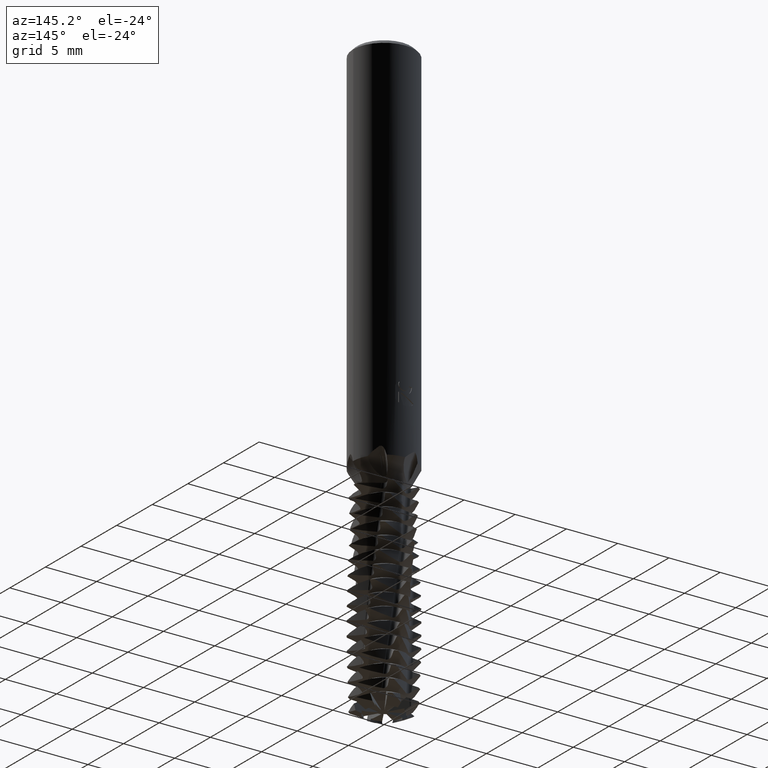
[diagram: clean part render]
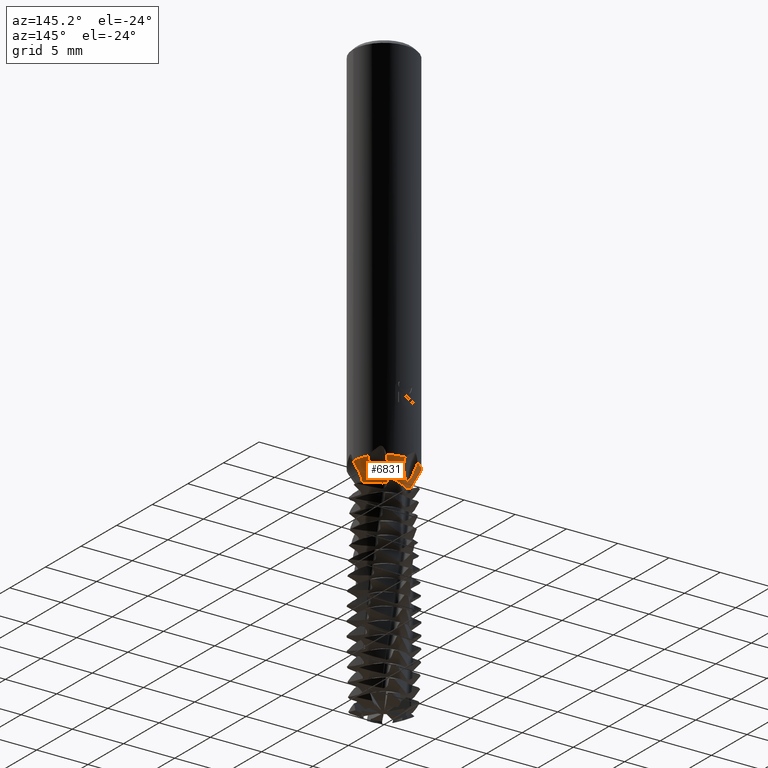
[diagram: same view with one face highlighted and labeled with its STEP entity id]
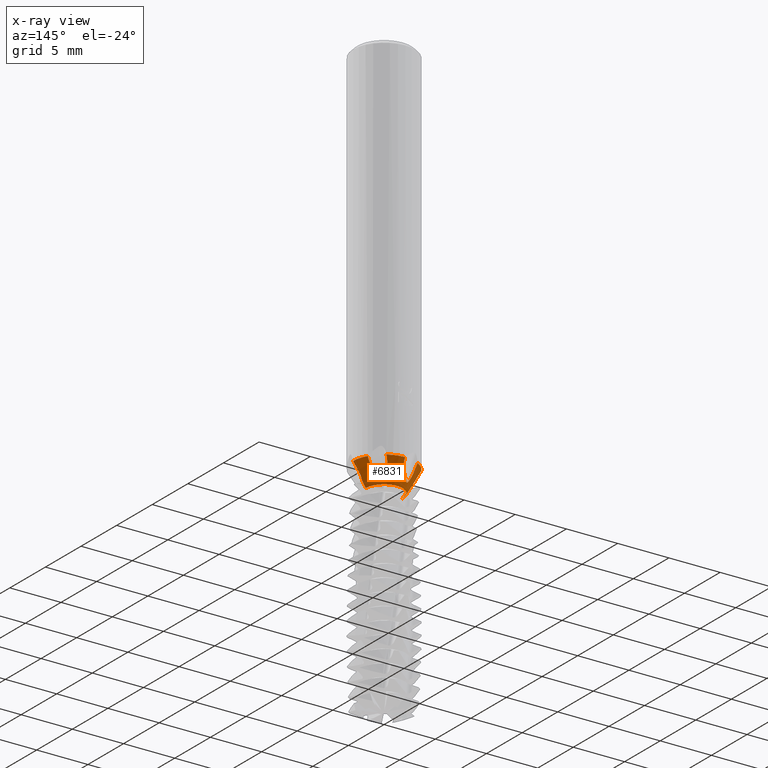
[diagram: x-ray of the same camera — body ghosted, the highlighted face saturated]
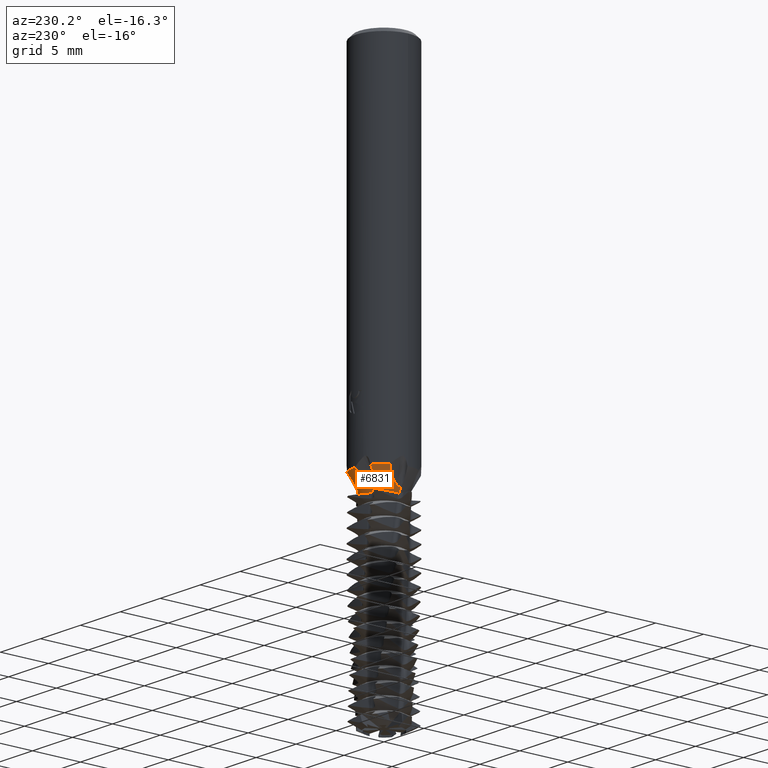
[diagram: same view with one face highlighted and labeled with its STEP entity id]
A machine part, auxiliary view. The second image highlights one B-rep face of the part: STEP entity #6831.
The next image is the same camera in x-ray: the body ghosted, the highlighted face saturated — about 0% of this face is hidden behind the body in this view.
A second angle (auxiliary view) of the same face is appended — the face is thin or edge-on in the first view.
In plain terms, the highlighted conical surface has half-angle 30 deg.
Its self-contained STEP definition (entity closure, byte-faithful):
#3035=EDGE_CURVE('',#3593,#5919,#8692,.T.);
#3051=VERTEX_POINT('',#8708);
#3191=VERTEX_POINT('',#8857);
#3333=VERTEX_POINT('',#9008);
#3381=VERTEX_POINT('',#9059);
#3471=EDGE_CURVE('',#6787,#4693,#9158,.T.);
#3577=VERTEX_POINT('',#9278);
#3593=VERTEX_POINT('',#9298);
#3607=EDGE_CURVE('',#4331,#3381,#9313,.T.);
#3623=EDGE_CURVE('',#6535,#5625,#9329,.T.);
#4085=EDGE_CURVE('',#3051,#4153,#9828,.T.);
#4153=VERTEX_POINT('',#9899);
#4331=VERTEX_POINT('',#10092);
#4681=VERTEX_POINT('',#10474);
#4693=VERTEX_POINT('',#10486);
#4701=EDGE_CURVE('',#5919,#6691,#10494,.T.);
#4789=EDGE_CURVE('',#5871,#3051,#10593,.T.);
#4961=EDGE_CURVE('',#3333,#3191,#10779,.T.);
#5119=EDGE_CURVE('',#4153,#6535,#10949,.T.);
#5223=EDGE_CURVE('',#3381,#5871,#11065,.T.);
#5455=VERTEX_POINT('',#11317);
#5589=EDGE_CURVE('',#6691,#6587,#11464,.T.);
#5625=VERTEX_POINT('',#11503);
#5871=VERTEX_POINT('',#11771);
#5919=VERTEX_POINT('',#11822);
#6287=VERTEX_POINT('',#12226);
#6535=VERTEX_POINT('',#12492);
#6565=EDGE_CURVE('',#3191,#3593,#12524,.T.);
#6587=VERTEX_POINT('',#12546);
#6691=VERTEX_POINT('',#12661);
#6787=VERTEX_POINT('',#12766);
#6831=ADVANCED_FACE('',(#12813),#12814,.T.);
#6877=EDGE_CURVE('',#7833,#4331,#12865,.T.);
#6929=EDGE_CURVE('',#3577,#4681,#12920,.T.);
#6969=EDGE_CURVE('',#3577,#3333,#12963,.T.);
#6989=EDGE_CURVE('',#5455,#6287,#12986,.T.);
#7633=EDGE_CURVE('',#4693,#6287,#13694,.T.);
#7673=EDGE_CURVE('',#4681,#5455,#13736,.T.);
#7683=EDGE_CURVE('',#6787,#5625,#13747,.T.);
#7833=VERTEX_POINT('',#13908);
#8137=EDGE_CURVE('',#6587,#7833,#14241,.T.);
#8692=CIRCLE('',#15108,3.0);
#8708=CARTESIAN_POINT('',(1.1049061965859,1.81742543855675,-38.0326686084301));
#8857=CARTESIAN_POINT('',(-2.10829573166421,0.314880770105269,-38.0244497289772));
#9008=CARTESIAN_POINT('',(-2.12638969756715,0.048164115763872,-38.0326686084301));
#9059=CARTESIAN_POINT('',(1.54380865566936,2.5722859161999,-36.5204758472839));
#9158=B_SPLINE_CURVE_WITH_KNOTS('',3,(#17267,#17268,#17269,#17270,#17271,#17272,#17273,#17274,#17275,#17276,#17277,#17278,#17279,#17280,#17281,#17282,#17283,#17284,#17285,#17286,#17287,#17288,#17289,#17290,#17291,#17292,#17293,#17294,#17295,#17296,#17297,#17298,#17299,#17300,#17301,#17302,#17303,#17304,#17305,#17306,#17307,#17308,#17309,#17310,#17311,#17312,#17313,#17314,#17315,#17316,#17317,#17318),.UNSPECIFIED.,.F.,.F.,(4,2,2,2,2,2,2,2,2,2,2,2,2,2,2,2,2,2,2,2,2,2,2,2,2,4),(0.0,1.79892156464952,3.59784312929904,5.39676469394856,7.19568625859808,8.09689398824936,8.99810171790064,9.89930944755192,10.8005171772032,11.6961765187938,12.5918358603844,13.2328963691149,13.4855879126679,13.6471176097623,13.8086473068568,13.8697587230916,13.9308701393263,14.0530929717959,14.2345228541612,14.5010364919052,14.7675501296493,15.3132858626618,15.8590215956744,16.9504930616995,18.0499211646433,19.1493492675871),.UNSPECIFIED.);
#9278=CARTESIAN_POINT('',(-2.16499437803357,3.69336668192884E-012,-37.9667480085785));
#9298=CARTESIAN_POINT('',(-2.58403707332399,1.52405787412657,-36.5204758472839));
#9313=CIRCLE('',#18402,3.0);
#9329=CIRCLE('',#18445,3.0);
#9828=B_SPLINE_CURVE_WITH_KNOTS('',3,(#21088,#21089,#21090,#21091,#21092,#21093,#21094,#21095,#21096,#21097,#21098,#21099,#21100,#21101,#21102,#21103,#21104,#21105,#21106,#21107,#21108,#21109,#21110,#21111),.UNSPECIFIED.,.F.,.F.,(4,2,2,2,2,2,2,2,2,2,2,4),(0.0,1.3654186101608,1.98511541988212,2.32692038766749,2.53101926806104,2.68486974053682,2.83100154557824,3.01260149889104,3.30866330231795,3.91424837905846,6.27634429260492,7.38712208023366),.UNSPECIFIED.);
#9899=CARTESIAN_POINT('',(1.32684261190647,1.66839727725888,-38.0244497289772));
#10092=CARTESIAN_POINT('',(0.0278542991693245,2.99987068688265,-36.5204758472839));
#10474=CARTESIAN_POINT('',(-1.79938617,0.0,-38.6));
#10486=CARTESIAN_POINT('',(2.58062501028295,0.0771844237953902,-37.2448558426521));
#10494=B_SPLINE_CURVE_WITH_KNOTS('',3,(#24257,#24258,#24259,#24260,#24261,#24262,#24263,#24264,#24265,#24266,#24267,#24268,#24269,#24270,#24271,#24272,#24273,#24274,#24275,#24276),.UNSPECIFIED.,.F.,.F.,(4,2,2,2,2,2,2,2,2,4),(0.0,1.80060986239746,2.7009147935962,3.60121972479493,4.50152465599366,5.40182958719239,7.20243944958986,8.34679906101014,8.91897886672028,9.49115867243042),.UNSPECIFIED.);
#10593=B_SPLINE_CURVE_WITH_KNOTS('',3,(#24833,#24834,#24835,#24836,#24837,#24838,#24839,#24840,#24841,#24842,#24843,#24844,#24845,#24846,#24847,#24848,#24849,#24850,#24851,#24852,#24853,#24854,#24855,#24856),.UNSPECIFIED.,.F.,.F.,(4,2,2,2,2,2,2,2,2,2,2,4),(0.0,1.3654186101608,1.98511541988212,2.32692038766749,2.53101926806104,2.68486974053682,2.83100154557824,3.01260149889104,3.30866330231795,3.91424837905846,6.27634429260492,7.38712208023366),.UNSPECIFIED.);
#10779=B_SPLINE_CURVE_WITH_KNOTS('',3,(#25932,#25933,#25934,#25935,#25936,#25937,#25938,#25939,#25940,#25941,#25942,#25943,#25944,#25945,#25946,#25947,#25948,#25949,#25950,#25951,#25952,#25953,#25954,#25955),.UNSPECIFIED.,.F.,.F.,(4,2,2,2,2,2,2,2,2,2,2,4),(0.0,1.3575415971684,1.97770147878749,2.33902558492398,2.55100621588176,2.70607941559937,2.85274831210491,3.03309770705154,3.32341211978844,3.90851040970902,5.28297228147467,7.46680945912721),.UNSPECIFIED.);
#10949=B_SPLINE_CURVE_WITH_KNOTS('',3,(#26716,#26717,#26718,#26719,#26720,#26721,#26722,#26723,#26724,#26725),.UNSPECIFIED.,.F.,.F.,(4,2,2,2,4),(0.0,0.518997077521445,1.15223215002492,1.98162829319229,2.55472416074088),.UNSPECIFIED.);
#11065=B_SPLINE_CURVE_WITH_KNOTS('',3,(#27326,#27327,#27328,#27329,#27330,#27331,#27332,#27333,#27334,#27335,#27336,#27337,#27338,#27339,#27340,#27341,#27342,#27343,#27344,#27345,#27346,#27347,#27348,#27349,#27350,#27351,#27352,#27353,#27354,#27355,#27356,#27357,#27358,#27359,#27360,#27361,#27362,#27363,#27364,#27365,#27366,#27367,#27368,#27369,#27370,#27371),.UNSPECIFIED.,.F.,.F.,(4,2,2,2,2,2,2,2,2,2,2,2,2,2,2,2,2,2,2,2,2,2,4),(0.0,1.19030835882144,2.38061671764289,3.57092507646433,4.76123343528578,5.95154179410722,7.14185015292867,8.33215851175011,9.52246687057156,10.4222211647252,11.3219754588789,11.9578497843963,12.208865108645,12.369708292074,12.530551475503,12.5914172977493,12.6522831199956,12.7740147644882,12.9541109301356,13.4819090235199,14.020830879234,14.5597527349481,15.6375964463763),.UNSPECIFIED.);
#11317=CARTESIAN_POINT('',(1.79938617,2.20353973676211E-016,-38.6));
#11464=B_SPLINE_CURVE_WITH_KNOTS('',3,(#29492,#29493,#29494,#29495,#29496,#29497,#29498,#29499,#29500,#29501,#29502,#29503,#29504,#29505,#29506,#29507,#29508,#29509,#29510,#29511),.UNSPECIFIED.,.F.,.F.,(4,2,2,2,2,2,2,2,2,4),(0.0,1.30419701519526,2.0239074430694,2.45782086379809,2.70470641663795,2.88051997531018,3.04378008304266,3.238514011857,3.54483593188181,4.12630736244945),.UNSPECIFIED.);
#11503=CARTESIAN_POINT('',(3.0,3.67381906146713E-016,-36.5204758472839));
#11771=CARTESIAN_POINT('',(1.22346883335821,2.27347902844421,-37.2448558426521));
#11822=CARTESIAN_POINT('',(-1.45576062139136,2.62312047249192,-36.5204758472839));
#12226=CARTESIAN_POINT('',(2.16499437803356,-3.69594273362605E-012,-37.9667480085785));
#12492=CARTESIAN_POINT('',(2.61189137249331,1.47581281275608,-36.5204758472839));
#12524=B_SPLINE_CURVE_WITH_KNOTS('',3,(#35122,#35123,#35124,#35125,#35126,#35127,#35128,#35129),.UNSPECIFIED.,.F.,.F.,(4,2,2,4),(0.0,0.631354581823227,1.4093412601336,2.09220906285944),.UNSPECIFIED.);
#12546=CARTESIAN_POINT('',(-1.02148350098127,1.8655895543206,-38.0326686084301));
#12661=CARTESIAN_POINT('',(-1.35715617692474,2.19629460464882,-37.2448558426521));
#12766=CARTESIAN_POINT('',(2.86296524862623,4.94458380308362E-016,-36.757826998509));
#12813=FACE_OUTER_BOUND('',#36851,.T.);
#12814=CONICAL_SURFACE('',#36852,2.399693085,0.523598775598299);
#12865=B_SPLINE_CURVE_WITH_KNOTS('',3,(#37153,#37154,#37155,#37156,#37157,#37158,#37159,#37160,#37161,#37162),.UNSPECIFIED.,.F.,.F.,(4,2,2,2,4),(0.0,0.546723211207724,1.281285638357,1.80064566287246,2.30334358990928),.UNSPECIFIED.);
#12920=LINE('',#37415,#37416);
#12963=B_SPLINE_CURVE_WITH_KNOTS('',3,(#37616,#37617,#37618,#37619,#37620,#37621,#37622,#37623,#37624,#37625,#37626,#37627,#37628,#37629,#37630,#37631,#37632,#37633,#37634,#37635,#37636,#37637,#37638,#37639),.UNSPECIFIED.,.F.,.F.,(4,2,2,2,2,2,2,2,2,2,2,4),(0.0,1.3575415971684,1.97770147878749,2.33902558492398,2.55100621588176,2.70607941559937,2.85274831210491,3.03309770705154,3.32341211978844,3.90851040970902,5.28297228147467,7.46680945912721),.UNSPECIFIED.);
#12986=LINE('',#37740,#37741);
#13694=B_SPLINE_CURVE_WITH_KNOTS('',3,(#41734,#41735,#41736,#41737,#41738,#41739,#41740,#41741,#41742,#41743,#41744,#41745,#41746,#41747,#41748,#41749,#41750,#41751,#41752,#41753,#41754,#41755,#41756,#41757),.UNSPECIFIED.,.F.,.F.,(4,2,2,2,2,2,2,2,2,2,2,4),(0.0,1.35754159716832,1.97770147878734,2.33902558492657,2.5510062158879,2.70607941560779,2.85274831211545,3.03309770706513,3.32341211980714,3.90851040973735,5.28297228152428,7.46680945920899),.UNSPECIFIED.);
#13736=CIRCLE('',#41980,1.79938617);
#13747=LINE('',#42057,#42058);
#13908=CARTESIAN_POINT('',(-0.781453119757736,1.98327804736414,-38.0244497289772));
#14241=B_SPLINE_CURVE_WITH_KNOTS('',3,(#44194,#44195,#44196,#44197,#44198,#44199,#44200,#44201,#44202,#44203,#44204,#44205,#44206,#44207,#44208,#44209,#44210,#44211,#44212,#44213),.UNSPECIFIED.,.F.,.F.,(4,2,2,2,2,2,2,2,2,4),(0.0,1.30419701519526,2.0239074430694,2.45782086379809,2.70470641663795,2.88051997531018,3.04378008304266,3.238514011857,3.54483593188181,4.12630736244945),.UNSPECIFIED.);
#15108=AXIS2_PLACEMENT_3D('',#46751,#46752,#46753);
#17267=CARTESIAN_POINT('',(5.60865937198833,-4.49160101712833,-29.2709615960817));
#17268=CARTESIAN_POINT('',(5.53417943615459,-4.14075545272087,-29.7515122013028));
#17269=CARTESIAN_POINT('',(5.44437967084136,-3.77194824815466,-30.2532068101509));
#17270=CARTESIAN_POINT('',(5.22340165139991,-3.02417260660068,-31.2719130887645));
#17271=CARTESIAN_POINT('',(5.09211627073529,-2.64496117692197,-31.7887231259066));
#17272=CARTESIAN_POINT('',(4.77622905463111,-1.91200858271407,-32.8176739152328));
#17273=CARTESIAN_POINT('',(4.59104662786163,-1.55813602903106,-33.3299095047367));
#17274=CARTESIAN_POINT('',(4.16227896952514,-0.92788389188668,-34.3425408306651));
#17275=CARTESIAN_POINT('',(3.91808717783326,-0.65307615687015,-34.8436572123733));
#17276=CARTESIAN_POINT('',(3.52382998832684,-0.335020471456029,-35.5876191925418));
#17277=CARTESIAN_POINT('',(3.37970458659504,-0.23807948229092,-35.8496736439336));
#17278=CARTESIAN_POINT('',(3.07518078675562,-0.0765550563978144,-36.3901196137103));
#17279=CARTESIAN_POINT('',(2.91487270829784,-0.0120303712761077,-36.6685795759934));
#17280=CARTESIAN_POINT('',(2.58991798567534,0.0810987368559631,-37.2293493297819));
#17281=CARTESIAN_POINT('',(2.42524000643958,0.109877140415632,-37.5118632278129));
#17282=CARTESIAN_POINT('',(2.10267367810805,0.137587492294589,-38.0671127432704));
#17283=CARTESIAN_POINT('',(1.94479077136784,0.136675214724881,-38.339843737345));
#17284=CARTESIAN_POINT('',(1.6460497495073,0.115680414712948,-38.8585545809848));
#17285=CARTESIAN_POINT('',(1.48327928801769,0.093554661279961,-39.1427549125285));
#17286=CARTESIAN_POINT('',(1.15864787109506,0.0295768329008396,-39.7095823477714));
#17287=CARTESIAN_POINT('',(0.996872798866824,-0.0120142582102919,-39.9922880594309));
#17288=CARTESIAN_POINT('',(0.739436587657935,-0.0859679937361218,-40.4289197218717));
#17289=CARTESIAN_POINT('',(0.609138697059832,-0.1266168170284,-40.6459992119375));
#17290=CARTESIAN_POINT('',(0.444754777656119,-0.176164651136261,-40.8894693067361));
#17291=CARTESIAN_POINT('',(0.386961242049176,-0.193227014641139,-40.9706189560452));
#17292=CARTESIAN_POINT('',(0.300990999917644,-0.216262462494056,-41.0761786320026));
#17293=CARTESIAN_POINT('',(0.262532427396549,-0.22604293901482,-41.1199920060905));
#17294=CARTESIAN_POINT('',(0.178257790441463,-0.24401499645515,-41.1971321765933));
#17295=CARTESIAN_POINT('',(0.132615809415084,-0.252222716498533,-41.23064518536));
#17296=CARTESIAN_POINT('',(0.0629589130829031,-0.2595570026175,-41.2551767765774));
#17297=CARTESIAN_POINT('',(0.0425736441916077,-0.261183415970423,-41.2596883161231));
#17298=CARTESIAN_POINT('',(0.00106468187603087,-0.263199845352604,-41.2621702170555));
#17299=CARTESIAN_POINT('',(-0.0200606745280809,-0.263585693603369,-41.2601160893507));
#17300=CARTESIAN_POINT('',(-0.0815823507163813,-0.262982255764408,-41.2449274907678));
#17301=CARTESIAN_POINT('',(-0.120505740644834,-0.260231569038198,-41.2225785834374));
#17302=CARTESIAN_POINT('',(-0.201585084383749,-0.252293708447352,-41.1625108950263));
#17303=CARTESIAN_POINT('',(-0.251656841733578,-0.244985636387321,-41.1104907109332));
#17304=CARTESIAN_POINT('',(-0.348440086522748,-0.229590908884106,-40.9978371366217));
#17305=CARTESIAN_POINT('',(-0.405774433016846,-0.219249129694845,-40.9196619192423));
#17306=CARTESIAN_POINT('',(-0.516001566632789,-0.199717509594918,-40.7598523024348));
#17307=CARTESIAN_POINT('',(-0.568851010012465,-0.190518100111168,-40.6781891809059));
#17308=CARTESIAN_POINT('',(-0.71310587646256,-0.166872732447677,-40.4502925398268));
#17309=CARTESIAN_POINT('',(-0.811393517616146,-0.152842439647325,-40.2872560943947));
#17310=CARTESIAN_POINT('',(-1.01074255072175,-0.130896683559813,-39.9519335659103));
#17311=CARTESIAN_POINT('',(-1.11167351430137,-0.122958315292646,-39.7795714597108));
#17312=CARTESIAN_POINT('',(-1.4135076505949,-0.109044430379912,-39.2615928199119));
#17313=CARTESIAN_POINT('',(-1.61349469015847,-0.113392523494829,-38.9150806723612));
#17314=CARTESIAN_POINT('',(-1.97774621799977,-0.138991244197601,-38.2826224444054));
#17315=CARTESIAN_POINT('',(-2.17803997474165,-0.163005422432737,-37.9337201313293));
#17316=CARTESIAN_POINT('',(-2.57638909047377,-0.230602420482321,-37.2364517165458));
#17317=CARTESIAN_POINT('',(-2.77440974580382,-0.273968580351368,-36.888044802318));
#17318=CARTESIAN_POINT('',(-2.95335182971889,-0.31932816901306,-36.5714584443562));
#18402=AXIS2_PLACEMENT_3D('',#47242,#47243,#47244);
#18445=AXIS2_PLACEMENT_3D('',#47246,#47247,#47248);
#21088=CARTESIAN_POINT('',(1.56664607994425,2.5588101698742,-36.5199304452602));
#21089=CARTESIAN_POINT('',(1.36828774752156,2.41947661115381,-36.9051474350968));
#21090=CARTESIAN_POINT('',(1.18300117860129,2.27201617200402,-37.2799461904197));
#21091=CARTESIAN_POINT('',(1.0730156658463,2.02310727395241,-37.7501595625792));
#21092=CARTESIAN_POINT('',(1.06678019377473,1.95301736133535,-37.8627687204528));
#21093=CARTESIAN_POINT('',(1.08457783935334,1.86073364143303,-37.9864138591814));
#21094=CARTESIAN_POINT('',(1.09644577145524,1.83040636229275,-38.0213153418576));
#21095=CARTESIAN_POINT('',(1.12280161892848,1.78701515945482,-38.0612948291796));
#21096=CARTESIAN_POINT('',(1.13532647786054,1.7702507947481,-38.0742667894512));
#21097=CARTESIAN_POINT('',(1.16307399384257,1.74189217710707,-38.0889629169425));
#21098=CARTESIAN_POINT('',(1.17648184016322,1.73044214498059,-38.0924556475597));
#21099=CARTESIAN_POINT('',(1.20556256051263,1.71017575501637,-38.0926315578529));
#21100=CARTESIAN_POINT('',(1.22022659575896,1.70185583308533,-38.089642942089));
#21101=CARTESIAN_POINT('',(1.25354326772298,1.68632585414884,-38.0773978189718));
#21102=CARTESIAN_POINT('',(1.27172654968499,1.68014212414632,-38.0670118949428));
#21103=CARTESIAN_POINT('',(1.31694894413728,1.66856247079825,-38.0351551813273));
#21104=CARTESIAN_POINT('',(1.34370130046131,1.6657727412673,-38.0098847088389));
#21105=CARTESIAN_POINT('',(1.41637528927774,1.66457090694301,-37.9316104153654));
#21106=CARTESIAN_POINT('',(1.46187573187657,1.67363852677663,-37.867845521134));
#21107=CARTESIAN_POINT('',(1.65046789702703,1.73141794263138,-37.5759024493151));
#21108=CARTESIAN_POINT('',(1.79112451819158,1.84910584680486,-37.2578882715577));
#21109=CARTESIAN_POINT('',(2.00743506996542,2.02015506097735,-36.7838690874051));
#21110=CARTESIAN_POINT('',(2.06390677475062,2.06336251911236,-36.6618393833364));
#21111=CARTESIAN_POINT('',(2.13239187365591,2.11063836846168,-36.5199304452602));
#24257=CARTESIAN_POINT('',(-0.508288822741573,5.39293261923411,-32.334398295234));
#24258=CARTESIAN_POINT('',(-0.727159299517186,5.09727424504493,-32.8086617520306));
#24259=CARTESIAN_POINT('',(-0.937200240628331,4.7707084657746,-33.3064324242182));
#24260=CARTESIAN_POINT('',(-1.18929089181496,4.25275422978241,-34.0710190523473));
#24261=CARTESIAN_POINT('',(-1.2626631821263,4.07558613076526,-34.3290756558686));
#24262=CARTESIAN_POINT('',(-1.37982505765425,3.71803681753632,-34.8504126698905));
#24263=CARTESIAN_POINT('',(-1.42351902662357,3.53769291246733,-35.1137401502309));
#24264=CARTESIAN_POINT('',(-1.4759134505413,3.1811165294562,-35.6448437293698));
#24265=CARTESIAN_POINT('',(-1.48460684233627,3.00460070352388,-35.9131925528268));
#24266=CARTESIAN_POINT('',(-1.46682246990542,2.6624337906922,-36.4530569456803));
#24267=CARTESIAN_POINT('',(-1.44040518641201,2.4968181173184,-36.7245969500489));
#24268=CARTESIAN_POINT('',(-1.31655444468885,2.023519318291,-37.5382394821325));
#24269=CARTESIAN_POINT('',(-1.17462618306515,1.74014436510907,-38.0802087056197));
#24270=CARTESIAN_POINT('',(-0.900016487856237,1.3333251398853,-38.9303481648516));
#24271=CARTESIAN_POINT('',(-0.768619577028148,1.16978617912774,-39.2933077872098));
#24272=CARTESIAN_POINT('',(-0.55223610112486,0.935751102511128,-39.8350004724101));
#24273=CARTESIAN_POINT('',(-0.47704781433759,0.859459020344416,-40.0150965609125));
#24274=CARTESIAN_POINT('',(-0.324221091313544,0.710758635767508,-40.3648263833099));
#24275=CARTESIAN_POINT('',(-0.246692861006785,0.638558150722251,-40.5345965838172));
#24276=CARTESIAN_POINT('',(-0.169079919278544,0.566231989213912,-40.6930951463071));
#24833=CARTESIAN_POINT('',(1.56664607994425,2.5588101698742,-36.5199304452602));
#24834=CARTESIAN_POINT('',(1.36828774752156,2.41947661115381,-36.9051474350968));
#24835=CARTESIAN_POINT('',(1.18300117860129,2.27201617200402,-37.2799461904197));
#24836=CARTESIAN_POINT('',(1.0730156658463,2.02310727395241,-37.7501595625792));
#24837=CARTESIAN_POINT('',(1.06678019377473,1.95301736133535,-37.8627687204528));
#24838=CARTESIAN_POINT('',(1.08457783935334,1.86073364143303,-37.9864138591814));
#24839=CARTESIAN_POINT('',(1.09644577145524,1.83040636229275,-38.0213153418576));
#24840=CARTESIAN_POINT('',(1.12280161892848,1.78701515945482,-38.0612948291796));
#24841=CARTESIAN_POINT('',(1.13532647786054,1.7702507947481,-38.0742667894512));
#24842=CARTESIAN_POINT('',(1.16307399384257,1.74189217710707,-38.0889629169425));
#24843=CARTESIAN_POINT('',(1.17648184016322,1.73044214498059,-38.0924556475597));
#24844=CARTESIAN_POINT('',(1.20556256051263,1.71017575501637,-38.0926315578529));
#24845=CARTESIAN_POINT('',(1.22022659575896,1.70185583308533,-38.089642942089));
#24846=CARTESIAN_POINT('',(1.25354326772298,1.68632585414884,-38.0773978189718));
#24847=CARTESIAN_POINT('',(1.27172654968499,1.68014212414632,-38.0670118949428));
#24848=CARTESIAN_POINT('',(1.31694894413728,1.66856247079825,-38.0351551813273));
#24849=CARTESIAN_POINT('',(1.34370130046131,1.6657727412673,-38.0098847088389));
#24850=CARTESIAN_POINT('',(1.41637528927774,1.66457090694301,-37.9316104153654));
#24851=CARTESIAN_POINT('',(1.46187573187657,1.67363852677663,-37.867845521134));
#24852=CARTESIAN_POINT('',(1.65046789702703,1.73141794263138,-37.5759024493151));
#24853=CARTESIAN_POINT('',(1.79112451819158,1.84910584680486,-37.2578882715577));
#24854=CARTESIAN_POINT('',(2.00743506996542,2.02015506097735,-36.7838690874051));
#24855=CARTESIAN_POINT('',(2.06390677475062,2.06336251911236,-36.6618393833364));
#24856=CARTESIAN_POINT('',(2.13239187365591,2.11063836846168,-36.5199304452602));
#25932=CARTESIAN_POINT('',(-2.99931765054515,0.0773502190339354,-36.5199304452602));
#25933=CARTESIAN_POINT('',(-2.78074035795917,-0.0241772525160376,-36.9029251428186));
#25934=CARTESIAN_POINT('',(-2.56313900872552,-0.109818554556673,-37.273107019754));
#25935=CARTESIAN_POINT('',(-2.293980617172,-0.0838003532439102,-37.7406960607725));
#25936=CARTESIAN_POINT('',(-2.23004876416744,-0.055364957207353,-37.8534381216402));
#25937=CARTESIAN_POINT('',(-2.15692145503528,0.00519778589404541,-37.9809156987621));
#25938=CARTESIAN_POINT('',(-2.1353285481792,0.0313960376349708,-38.0180814082639));
#25939=CARTESIAN_POINT('',(-2.10967966677262,0.0773256639451755,-38.0602242397376));
#25940=CARTESIAN_POINT('',(-2.10107420516676,0.0970488837897007,-38.073794322822));
#25941=CARTESIAN_POINT('',(-2.09014524125947,0.135908226970162,-38.08886001659));
#25942=CARTESIAN_POINT('',(-2.08690559848674,0.153249604498496,-38.0924058819131));
#25943=CARTESIAN_POINT('',(-2.08385146512164,0.188524853356053,-38.0926736534854));
#25944=CARTESIAN_POINT('',(-2.08395032652219,0.20533692273776,-38.0897475913529));
#25945=CARTESIAN_POINT('',(-2.08707039710097,0.241664690931274,-38.0777239117512));
#25946=CARTESIAN_POINT('',(-2.09070327412928,0.260288962943429,-38.0675753237835));
#25947=CARTESIAN_POINT('',(-2.10288941912787,0.304461948874601,-38.0366159082334));
#25948=CARTESIAN_POINT('',(-2.11343347783885,0.328545680706678,-38.0122242543083));
#25949=CARTESIAN_POINT('',(-2.14717586468728,0.390460560511437,-37.9371674222859));
#25950=CARTESIAN_POINT('',(-2.17619369780695,0.424471215292881,-37.8764858430212));
#25951=CARTESIAN_POINT('',(-2.27017118765268,0.514622779260884,-37.6856954438428));
#25952=CARTESIAN_POINT('',(-2.35446214160111,0.561459651964347,-37.5243387682715));
#25953=CARTESIAN_POINT('',(-2.56965366136249,0.660463455586712,-37.121442192171));
#25954=CARTESIAN_POINT('',(-2.71840490010319,0.708044347968236,-36.8514791242517));
#25955=CARTESIAN_POINT('',(-2.8940623821179,0.791386349178679,-36.5199304452602));
#26716=CARTESIAN_POINT('',(0.813367001495861,1.88143715466479,-38.1664008206317));
#26717=CARTESIAN_POINT('',(0.973880770130166,1.81749177993238,-38.1577416017928));
#26718=CARTESIAN_POINT('',(1.12746684731318,1.75265159444729,-38.1169910380707));
#26719=CARTESIAN_POINT('',(1.45300112168477,1.61505559141018,-37.9679776182526));
#26720=CARTESIAN_POINT('',(1.61707082870746,1.54597739981011,-37.8489901279541));
#26721=CARTESIAN_POINT('',(1.9628033426223,1.4240019697281,-37.5279999002763));
#26722=CARTESIAN_POINT('',(2.14630308943755,1.37847944530522,-37.300548766783));
#26723=CARTESIAN_POINT('',(2.42429301315467,1.38940774640762,-36.877824839951));
#26724=CARTESIAN_POINT('',(2.52560717065167,1.41865036919529,-36.6992963470336));
#26725=CARTESIAN_POINT('',(2.6121545866301,1.47598707338636,-36.5199304452602));
#27326=CARTESIAN_POINT('',(5.834414027438,2.86397111377659,-30.459268332382));
#27327=CARTESIAN_POINT('',(5.6017126899268,2.92449781509026,-30.7748829783274));
#27328=CARTESIAN_POINT('',(5.3601600612581,2.98057702938286,-31.0977190018824));
#27329=CARTESIAN_POINT('',(4.86453681766674,3.07648730698645,-31.7516272203702));
#27330=CARTESIAN_POINT('',(4.61042195843457,3.11632371720891,-32.0826650953138));
#27331=CARTESIAN_POINT('',(4.09690548905526,3.17077856001078,-32.7485587867153));
#27332=CARTESIAN_POINT('',(3.8374573003103,3.18535831596599,-33.0833802455026));
#27333=CARTESIAN_POINT('',(3.32414627188124,3.17900091702103,-33.7552716727296));
#27334=CARTESIAN_POINT('',(3.07031207174174,3.15792468724505,-34.0923621976059));
#27335=CARTESIAN_POINT('',(2.58341541718357,3.07108630101739,-34.7705258753381));
#27336=CARTESIAN_POINT('',(2.34969859292402,3.00489007292112,-35.1129926229391));
#27337=CARTESIAN_POINT('',(1.92003392104792,2.82506181417268,-35.8039999270179));
#27338=CARTESIAN_POINT('',(1.72433069171756,2.71146032738046,-36.1527005033535));
#27339=CARTESIAN_POINT('',(1.3804713144015,2.44641810652874,-36.8531634416246));
#27340=CARTESIAN_POINT('',(1.23203188763205,2.29512786160553,-37.2052663013801));
#27341=CARTESIAN_POINT('',(0.979473837557451,1.96978931635647,-37.9068828398949));
#27342=CARTESIAN_POINT('',(0.875138288445363,1.79589017820272,-38.2563875743079));
#27343=CARTESIAN_POINT('',(0.722543726192204,1.48274758209438,-38.8597366919671));
#27344=CARTESIAN_POINT('',(0.660081105386173,1.33000794377294,-39.1452347739025));
#27345=CARTESIAN_POINT('',(0.55282782054555,1.01537249594726,-39.7146343542066));
#27346=CARTESIAN_POINT('',(0.507855256581875,0.853688833648503,-39.9986187792668));
#27347=CARTESIAN_POINT('',(0.443327255438587,0.593755357614781,-40.4348388796115));
#27348=CARTESIAN_POINT('',(0.413617797184689,0.461560569499528,-40.6500961009579));
#27349=CARTESIAN_POINT('',(0.374575491529598,0.295568991304854,-40.8915904532959));
#27350=CARTESIAN_POINT('',(0.360519446103568,0.237323370479008,-40.9721588473647));
#27351=CARTESIAN_POINT('',(0.337570624976059,0.151776021347194,-41.0770516256008));
#27352=CARTESIAN_POINT('',(0.326834716654857,0.11370991181553,-41.1206470615903));
#27353=CARTESIAN_POINT('',(0.300326849252965,0.0320234316989455,-41.1973922287145));
#27354=CARTESIAN_POINT('',(0.284651376512824,-0.0114600169612624,-41.2307208284987));
#27355=CARTESIAN_POINT('',(0.256293827081321,-0.0751838942556392,-41.255149715936));
#27356=CARTESIAN_POINT('',(0.247545980698995,-0.0935801452027384,-41.259654944278));
#27357=CARTESIAN_POINT('',(0.22861622008807,-0.130403776237682,-41.2621753959497));
#27358=CARTESIAN_POINT('',(0.218429832555234,-0.148830531053213,-41.2601660962038));
#27359=CARTESIAN_POINT('',(0.187269040948368,-0.201649572085968,-41.2451598777483));
#27360=CARTESIAN_POINT('',(0.165503999918952,-0.233904458149,-41.2229921304497));
#27361=CARTESIAN_POINT('',(0.118341272704721,-0.299869332955012,-41.1634393163024));
#27362=CARTESIAN_POINT('',(0.0871698175106269,-0.339379178045304,-41.1118946449681));
#27363=CARTESIAN_POINT('',(-0.010495670859826,-0.459922086993821,-40.9341020012875));
#27364=CARTESIAN_POINT('',(-0.0868028460953442,-0.548132363957662,-40.758126166508));
#27365=CARTESIAN_POINT('',(-0.208650365687394,-0.696783530060622,-40.4589800548884));
#27366=CARTESIAN_POINT('',(-0.269322099147749,-0.773921228750597,-40.2980371480404));
#27367=CARTESIAN_POINT('',(-0.386861800615446,-0.933508677756683,-39.9669891927775));
#27368=CARTESIAN_POINT('',(-0.443685189868757,-1.01583662686314,-39.7968096170228));
#27369=CARTESIAN_POINT('',(-0.605286781698558,-1.26681830507302,-39.2853632551972));
#27370=CARTESIAN_POINT('',(-0.700858548681552,-1.43971787197739,-38.9431882340109));
#27371=CARTESIAN_POINT('',(-0.780102229566554,-1.60093659133826,-38.63204201287));
#29492=CARTESIAN_POINT('',(-1.4326715706009,2.63616038890813,-36.5199304452602));
#29493=CARTESIAN_POINT('',(-1.4121477635746,2.40553621100626,-36.8878753704346));
#29494=CARTESIAN_POINT('',(-1.38011736951472,2.19119231357815,-37.2313035371813));
#29495=CARTESIAN_POINT('',(-1.23601169008595,1.95883453790596,-37.70486165613));
#29496=CARTESIAN_POINT('',(-1.17614696554223,1.91189718679117,-37.8292139108562));
#29497=CARTESIAN_POINT('',(-1.08485365479158,1.87307310841976,-37.9676994732731));
#29498=CARTESIAN_POINT('',(-1.04954660626391,1.86586212340776,-38.0090431203487));
#29499=CARTESIAN_POINT('',(-0.994786155433309,1.86516119027007,-38.0554294237094));
#29500=CARTESIAN_POINT('',(-0.972769701248627,1.86707376060822,-38.0703832339884));
#29501=CARTESIAN_POINT('',(-0.932716017237416,1.87641083475454,-38.0873305155262));
#29502=CARTESIAN_POINT('',(-0.915800170445352,1.88198786244429,-38.0916205061569));
#29503=CARTESIAN_POINT('',(-0.88325268095349,1.89649396186954,-38.0931504696259));
#29504=CARTESIAN_POINT('',(-0.868566333956204,1.90473110916481,-38.0908270668656));
#29505=CARTESIAN_POINT('',(-0.838604289870554,1.92489463035173,-38.080104419012));
#29506=CARTESIAN_POINT('',(-0.824355167800037,1.93682549719622,-38.0708374757733));
#29507=CARTESIAN_POINT('',(-0.792550562957848,1.96786974013776,-38.0423894629918));
#29508=CARTESIAN_POINT('',(-0.777079961661543,1.98786387887042,-38.0199573053665));
#29509=CARTESIAN_POINT('',(-0.74160894118645,2.04277722064068,-37.9529607286589));
#29510=CARTESIAN_POINT('',(-0.726571475822748,2.08030873736105,-37.9001458389201));
#29511=CARTESIAN_POINT('',(-0.716673857411957,2.11427349804122,-37.849934393879));
#35122=CARTESIAN_POINT('',(-2.09509680968963,0.208850370411363,-38.0698286646325));
#35123=CARTESIAN_POINT('',(-2.11936203865489,0.403856000062514,-37.994503712593));
#35124=CARTESIAN_POINT('',(-2.14115147770517,0.583213196614244,-37.8807555036841));
#35125=CARTESIAN_POINT('',(-2.20345356249674,0.938427454978237,-37.5794395868786));
#35126=CARTESIAN_POINT('',(-2.24897310971547,1.11408042652286,-37.3722154582483));
#35127=CARTESIAN_POINT('',(-2.38848409656493,1.37722231159317,-36.9430671513303));
#35128=CARTESIAN_POINT('',(-2.47440417476682,1.4694544383719,-36.7320830708087));
#35129=CARTESIAN_POINT('',(-2.58431959452508,1.52419869394053,-36.5199304452602));
#36851=EDGE_LOOP('',(#49923,#49924,#49925,#49926,#49927,#49928,#49929,#49930,#49931,#49932,#49933,#49934,#49935,#49936,#49937,#49938,#49939,#49940,#49941,#49942));
#36852=AXIS2_PLACEMENT_3D('',#49943,#49944,#49945);
#37153=CARTESIAN_POINT('',(-1.01976561992589,1.80257359399455,-38.1294872847429));
#37154=CARTESIAN_POINT('',(-0.878935224842586,1.91025594990024,-38.0872603053488));
#37155=CARTESIAN_POINT('',(-0.744971590225013,2.00981100463903,-38.0124319550598));
#37156=CARTESIAN_POINT('',(-0.459415691898287,2.23109272981906,-37.7853722074073));
#37157=CARTESIAN_POINT('',(-0.313834007096599,2.3518528958646,-37.6123607136493));
#37158=CARTESIAN_POINT('',(-0.123313229185581,2.56153005135063,-37.2772722349332));
#37159=CARTESIAN_POINT('',(-0.0619591982514527,2.64892298988635,-37.1278324575503));
#37160=CARTESIAN_POINT('',(0.0157184765240675,2.82440619944841,-36.8250017876203));
#37161=CARTESIAN_POINT('',(0.033271691103343,2.91190421889885,-36.6727446304951));
#37162=CARTESIAN_POINT('',(0.0278349921050265,3.00018576732688,-36.5199304452602));
#37415=CARTESIAN_POINT('',(-2.399693085,-2.93867939911462E-016,-37.5602379236419));
#37416=VECTOR('',#50017,1.0);
#37616=CARTESIAN_POINT('',(-2.99931765054515,0.0773502190339354,-36.5199304452602));
#37617=CARTESIAN_POINT('',(-2.78074035795917,-0.0241772525160376,-36.9029251428186));
#37618=CARTESIAN_POINT('',(-2.56313900872552,-0.109818554556673,-37.273107019754));
#37619=CARTESIAN_POINT('',(-2.293980617172,-0.0838003532439102,-37.7406960607725));
#37620=CARTESIAN_POINT('',(-2.23004876416744,-0.055364957207353,-37.8534381216402));
#37621=CARTESIAN_POINT('',(-2.15692145503528,0.00519778589404541,-37.9809156987621));
#37622=CARTESIAN_POINT('',(-2.1353285481792,0.0313960376349708,-38.0180814082639));
#37623=CARTESIAN_POINT('',(-2.10967966677262,0.0773256639451755,-38.0602242397376));
#37624=CARTESIAN_POINT('',(-2.10107420516676,0.0970488837897007,-38.073794322822));
#37625=CARTESIAN_POINT('',(-2.09014524125947,0.135908226970162,-38.08886001659));
#37626=CARTESIAN_POINT('',(-2.08690559848674,0.153249604498496,-38.0924058819131));
#37627=CARTESIAN_POINT('',(-2.08385146512164,0.188524853356053,-38.0926736534854));
#37628=CARTESIAN_POINT('',(-2.08395032652219,0.20533692273776,-38.0897475913529));
#37629=CARTESIAN_POINT('',(-2.08707039710097,0.241664690931274,-38.0777239117512));
#37630=CARTESIAN_POINT('',(-2.09070327412928,0.260288962943429,-38.0675753237835));
#37631=CARTESIAN_POINT('',(-2.10288941912787,0.304461948874601,-38.0366159082334));
#37632=CARTESIAN_POINT('',(-2.11343347783885,0.328545680706678,-38.0122242543083));
#37633=CARTESIAN_POINT('',(-2.14717586468728,0.390460560511437,-37.9371674222859));
#37634=CARTESIAN_POINT('',(-2.17619369780695,0.424471215292881,-37.8764858430212));
#37635=CARTESIAN_POINT('',(-2.27017118765268,0.514622779260884,-37.6856954438428));
#37636=CARTESIAN_POINT('',(-2.35446214160111,0.561459651964347,-37.5243387682715));
#37637=CARTESIAN_POINT('',(-2.56965366136249,0.660463455586712,-37.121442192171));
#37638=CARTESIAN_POINT('',(-2.71840490010319,0.708044347968236,-36.8514791242517));
#37639=CARTESIAN_POINT('',(-2.8940623821179,0.791386349178679,-36.5199304452602));
#37740=CARTESIAN_POINT('',(2.399693085,2.93867939911462E-016,-37.5602379236419));
#37741=VECTOR('',#50078,1.0);
#41734=CARTESIAN_POINT('',(2.99931765054516,-0.077350219033931,-36.5199304452602));
#41735=CARTESIAN_POINT('',(2.78074035795918,0.0241772525160363,-36.9029251428186));
#41736=CARTESIAN_POINT('',(2.56313900872552,0.109818554556678,-37.273107019754));
#41737=CARTESIAN_POINT('',(2.293980617172,0.0838003532439142,-37.7406960607725));
#41738=CARTESIAN_POINT('',(2.23004876416744,0.0553649572073585,-37.8534381216402));
#41739=CARTESIAN_POINT('',(2.15692145503508,-0.00519778589421713,-37.9809156987625));
#41740=CARTESIAN_POINT('',(2.13532854817907,-0.0313960376352044,-38.0180814082641));
#41741=CARTESIAN_POINT('',(2.10967966677261,-0.0773256639451928,-38.0602242397376));
#41742=CARTESIAN_POINT('',(2.10107420516676,-0.0970488837897089,-38.073794322822));
#41743=CARTESIAN_POINT('',(2.09014524125948,-0.135908226970123,-38.0888600165899));
#41744=CARTESIAN_POINT('',(2.08690559848675,-0.153249604498476,-38.0924058819131));
#41745=CARTESIAN_POINT('',(2.08385146512164,-0.188524853356067,-38.0926736534854));
#41746=CARTESIAN_POINT('',(2.08395032652219,-0.205336922737791,-38.0897475913529));
#41747=CARTESIAN_POINT('',(2.08707039710097,-0.241664690931281,-38.0777239117512));
#41748=CARTESIAN_POINT('',(2.09070327412929,-0.260288962943446,-38.0675753237835));
#41749=CARTESIAN_POINT('',(2.10288941912787,-0.304461948874596,-38.0366159082334));
#41750=CARTESIAN_POINT('',(2.11343347783885,-0.328545680706661,-38.0122242543084));
#41751=CARTESIAN_POINT('',(2.14717586468729,-0.390460560511436,-37.9371674222859));
#41752=CARTESIAN_POINT('',(2.17619369780694,-0.424471215292871,-37.8764858430213));
#41753=CARTESIAN_POINT('',(2.27017118765269,-0.514622779260879,-37.6856954438428));
#41754=CARTESIAN_POINT('',(2.3544621416011,-0.561459651964337,-37.5243387682716));
#41755=CARTESIAN_POINT('',(2.56965366136252,-0.660463455586717,-37.121442192171));
#41756=CARTESIAN_POINT('',(2.71840490010321,-0.708044347968239,-36.8514791242516));
#41757=CARTESIAN_POINT('',(2.89406238211791,-0.791386349178675,-36.5199304452602));
#41980=AXIS2_PLACEMENT_3D('',#50685,#50686,#50687);
#42057=CARTESIAN_POINT('',(2.399693085,2.93867939911462E-016,-37.5602379236419));
#42058=VECTOR('',#50692,1.0);
#44194=CARTESIAN_POINT('',(-1.4326715706009,2.63616038890813,-36.5199304452602));
#44195=CARTESIAN_POINT('',(-1.4121477635746,2.40553621100626,-36.8878753704346));
#44196=CARTESIAN_POINT('',(-1.38011736951472,2.19119231357815,-37.2313035371813));
#44197=CARTESIAN_POINT('',(-1.23601169008595,1.95883453790596,-37.70486165613));
#44198=CARTESIAN_POINT('',(-1.17614696554223,1.91189718679117,-37.8292139108562));
#44199=CARTESIAN_POINT('',(-1.08485365479158,1.87307310841976,-37.9676994732731));
#44200=CARTESIAN_POINT('',(-1.04954660626391,1.86586212340776,-38.0090431203487));
#44201=CARTESIAN_POINT('',(-0.994786155433309,1.86516119027007,-38.0554294237094));
#44202=CARTESIAN_POINT('',(-0.972769701248627,1.86707376060822,-38.0703832339884));
#44203=CARTESIAN_POINT('',(-0.932716017237416,1.87641083475454,-38.0873305155262));
#44204=CARTESIAN_POINT('',(-0.915800170445352,1.88198786244429,-38.0916205061569));
#44205=CARTESIAN_POINT('',(-0.88325268095349,1.89649396186954,-38.0931504696259));
#44206=CARTESIAN_POINT('',(-0.868566333956204,1.90473110916481,-38.0908270668656));
#44207=CARTESIAN_POINT('',(-0.838604289870554,1.92489463035173,-38.080104419012));
#44208=CARTESIAN_POINT('',(-0.824355167800037,1.93682549719622,-38.0708374757733));
#44209=CARTESIAN_POINT('',(-0.792550562957848,1.96786974013776,-38.0423894629918));
#44210=CARTESIAN_POINT('',(-0.777079961661543,1.98786387887042,-38.0199573053665));
#44211=CARTESIAN_POINT('',(-0.74160894118645,2.04277722064068,-37.9529607286589));
#44212=CARTESIAN_POINT('',(-0.726571475822748,2.08030873736105,-37.9001458389201));
#44213=CARTESIAN_POINT('',(-0.716673857411957,2.11427349804122,-37.849934393879));
#46751=CARTESIAN_POINT('',(0.0,0.0,-36.5204758472839));
#46752=DIRECTION('',(0.0,0.0,-1.0));
#46753=DIRECTION('',(-1.0,0.0,0.0));
#47242=CARTESIAN_POINT('',(0.0,0.0,-36.5204758472839));
#47243=DIRECTION('',(0.0,0.0,-1.0));
#47244=DIRECTION('',(-1.0,0.0,0.0));
#47246=CARTESIAN_POINT('',(0.0,0.0,-36.5204758472839));
#47247=DIRECTION('',(0.0,0.0,-1.0));
#47248=DIRECTION('',(-1.0,0.0,0.0));
#49923=ORIENTED_EDGE('',*,*,#6929,.F.);
#49924=ORIENTED_EDGE('',*,*,#6969,.T.);
#49925=ORIENTED_EDGE('',*,*,#4961,.T.);
#49926=ORIENTED_EDGE('',*,*,#6565,.T.);
#49927=ORIENTED_EDGE('',*,*,#3035,.T.);
#49928=ORIENTED_EDGE('',*,*,#4701,.T.);
#49929=ORIENTED_EDGE('',*,*,#5589,.T.);
#49930=ORIENTED_EDGE('',*,*,#8137,.T.);
#49931=ORIENTED_EDGE('',*,*,#6877,.T.);
#49932=ORIENTED_EDGE('',*,*,#3607,.T.);
#49933=ORIENTED_EDGE('',*,*,#5223,.T.);
#49934=ORIENTED_EDGE('',*,*,#4789,.T.);
#49935=ORIENTED_EDGE('',*,*,#4085,.T.);
#49936=ORIENTED_EDGE('',*,*,#5119,.T.);
#49937=ORIENTED_EDGE('',*,*,#3623,.T.);
#49938=ORIENTED_EDGE('',*,*,#7683,.F.);
#49939=ORIENTED_EDGE('',*,*,#3471,.T.);
#49940=ORIENTED_EDGE('',*,*,#7633,.T.);
#49941=ORIENTED_EDGE('',*,*,#6989,.F.);
#49942=ORIENTED_EDGE('',*,*,#7673,.F.);
#49943=CARTESIAN_POINT('',(0.0,0.0,-37.5602379236419));
#49944=DIRECTION('',(-0.0,-0.0,1.0));
#49945=DIRECTION('',(-1.0,0.0,0.0));
#50017=DIRECTION('',(0.5,6.12303176911189E-017,-0.866025403784439));
#50078=DIRECTION('',(0.5,6.12303176911189E-017,0.866025403784439));
#50685=CARTESIAN_POINT('',(0.0,0.0,-38.6));
#50686=DIRECTION('',(0.0,0.0,-1.0));
#50687=DIRECTION('',(-1.0,0.0,0.0));
#50692=DIRECTION('',(0.5,6.12303176911189E-017,0.866025403784439));